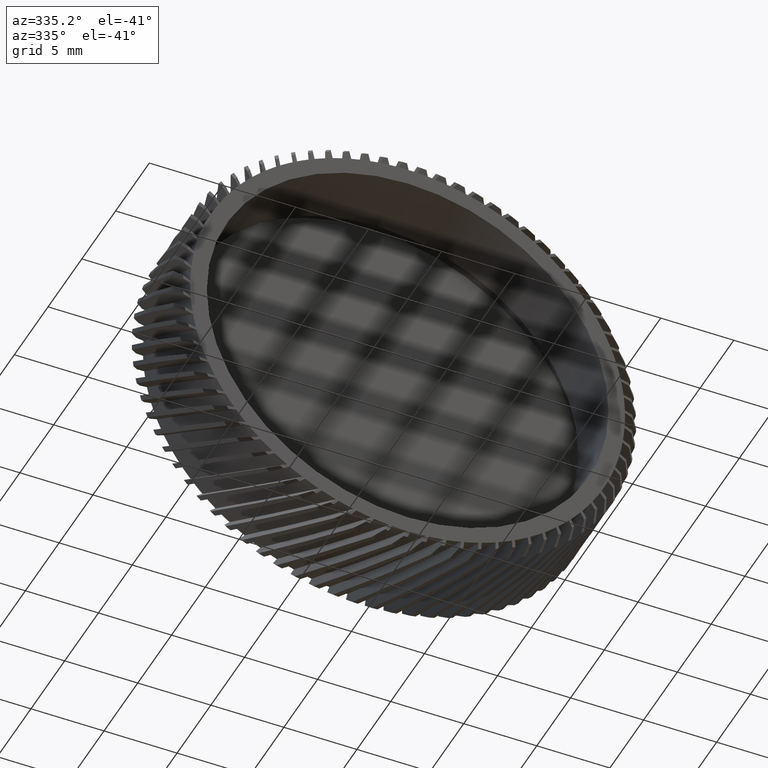
[diagram: clean part render]
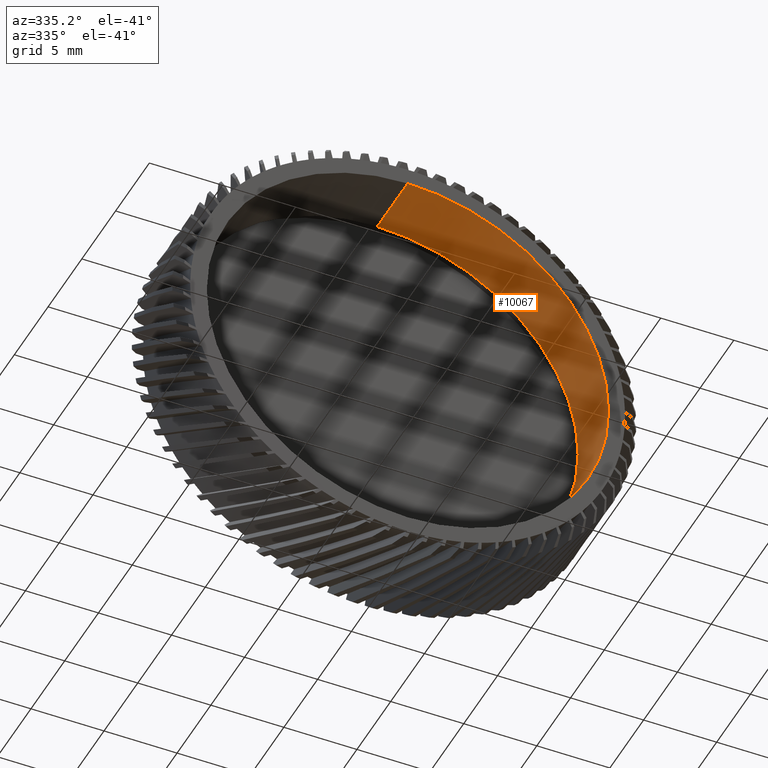
[diagram: same view with one face highlighted and labeled with its STEP entity id]
A machine part, auxiliary view. The second image highlights one B-rep face of the part: STEP entity #10067.
In plain terms, the highlighted cylindrical surface (partial cylindrical patch) has radius 13.75 mm, axis along (-0, 1, -0).
Its self-contained STEP definition (entity closure, byte-faithful):
#35 = CIRCLE ( 'NONE', #7802, 13.75000000000000700 ) ;
#226 = CARTESIAN_POINT ( 'NONE',  ( 1.683889348827611600E-015, 46.02073106022621100, -13.75000000000000700 ) ) ;
#233 = ORIENTED_EDGE ( 'NONE', *, *, #435, .T. ) ;
#435 = EDGE_CURVE ( 'NONE', #8044, #15359, #7736, .T. ) ;
#855 = VERTEX_POINT ( 'NONE', #1358 ) ;
#906 = EDGE_CURVE ( 'NONE', #8044, #4474, #35, .T. ) ;
#1104 = AXIS2_PLACEMENT_3D ( 'NONE', #12833, #15286, #1610 ) ;
#1358 = CARTESIAN_POINT ( 'NONE',  ( 1.683889348827611600E-015, -8.830884482231917700, -13.75000000000000700 ) ) ;
#1610 = DIRECTION ( 'NONE',  ( 0.0000000000000000000, 0.0000000000000000000, 1.000000000000000000 ) ) ;
#2844 = DIRECTION ( 'NONE',  ( -0.0000000000000000000, 1.000000000000000000, -0.0000000000000000000 ) ) ;
#4262 = CARTESIAN_POINT ( 'NONE',  ( 0.0000000000000000000, -13.33088448223191600, 0.0000000000000000000 ) ) ;
#4409 = CARTESIAN_POINT ( 'NONE',  ( 0.0000000000000000000, -13.33088448223191600, 13.75000000000000700 ) ) ;
#4474 = VERTEX_POINT ( 'NONE', #14837 ) ;
#4726 = DIRECTION ( 'NONE',  ( 0.0000000000000000000, 0.0000000000000000000, 1.000000000000000000 ) ) ;
#5297 = CYLINDRICAL_SURFACE ( 'NONE', #7977, 13.75000000000000700 ) ;
#7065 = CARTESIAN_POINT ( 'NONE',  ( 0.0000000000000000000, 46.02073106022621100, 0.0000000000000000000 ) ) ;
#7736 = LINE ( 'NONE', #10351, #9124 ) ;
#7802 = AXIS2_PLACEMENT_3D ( 'NONE', #4262, #2844, #13072 ) ;
#7977 = AXIS2_PLACEMENT_3D ( 'NONE', #7065, #8553, #4726 ) ;
#8044 = VERTEX_POINT ( 'NONE', #4409 ) ;
#8553 = DIRECTION ( 'NONE',  ( -0.0000000000000000000, 1.000000000000000000, -0.0000000000000000000 ) ) ;
#8675 = FACE_OUTER_BOUND ( 'NONE', #13273, .T. ) ;
#8847 = LINE ( 'NONE', #226, #13523 ) ;
#9124 = VECTOR ( 'NONE', #11543, 1000.000000000000000 ) ;
#9818 = CARTESIAN_POINT ( 'NONE',  ( 0.0000000000000000000, -8.830884482231917700, 13.75000000000000700 ) ) ;
#10067 = ADVANCED_FACE ( 'NONE', ( #8675 ), #5297, .F. ) ;
#10351 = CARTESIAN_POINT ( 'NONE',  ( 0.0000000000000000000, 46.02073106022621100, 13.75000000000000700 ) ) ;
#11462 = ORIENTED_EDGE ( 'NONE', *, *, #13119, .F. ) ;
#11543 = DIRECTION ( 'NONE',  ( -0.0000000000000000000, 1.000000000000000000, -0.0000000000000000000 ) ) ;
#11556 = DIRECTION ( 'NONE',  ( -0.0000000000000000000, 1.000000000000000000, -0.0000000000000000000 ) ) ;
#12036 = ORIENTED_EDGE ( 'NONE', *, *, #15007, .T. ) ;
#12833 = CARTESIAN_POINT ( 'NONE',  ( 0.0000000000000000000, -8.830884482231917700, 0.0000000000000000000 ) ) ;
#13072 = DIRECTION ( 'NONE',  ( 0.0000000000000000000, 0.0000000000000000000, 1.000000000000000000 ) ) ;
#13119 = EDGE_CURVE ( 'NONE', #4474, #855, #8847, .T. ) ;
#13273 = EDGE_LOOP ( 'NONE', ( #11462, #13460, #233, #12036 ) ) ;
#13460 = ORIENTED_EDGE ( 'NONE', *, *, #906, .F. ) ;
#13523 = VECTOR ( 'NONE', #11556, 1000.000000000000000 ) ;
#14837 = CARTESIAN_POINT ( 'NONE',  ( 1.683889348827611600E-015, -13.33088448223191600, -13.75000000000000700 ) ) ;
#15007 = EDGE_CURVE ( 'NONE', #15359, #855, #15418, .T. ) ;
#15286 = DIRECTION ( 'NONE',  ( -0.0000000000000000000, 1.000000000000000000, -0.0000000000000000000 ) ) ;
#15359 = VERTEX_POINT ( 'NONE', #9818 ) ;
#15418 = CIRCLE ( 'NONE', #1104, 13.75000000000000700 ) ;